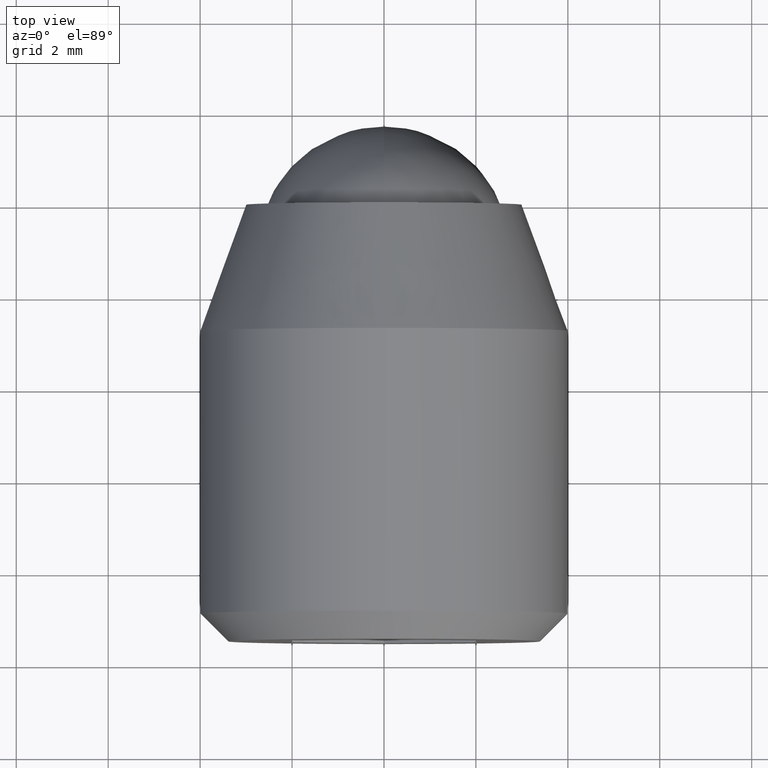
[diagram: clean part render]
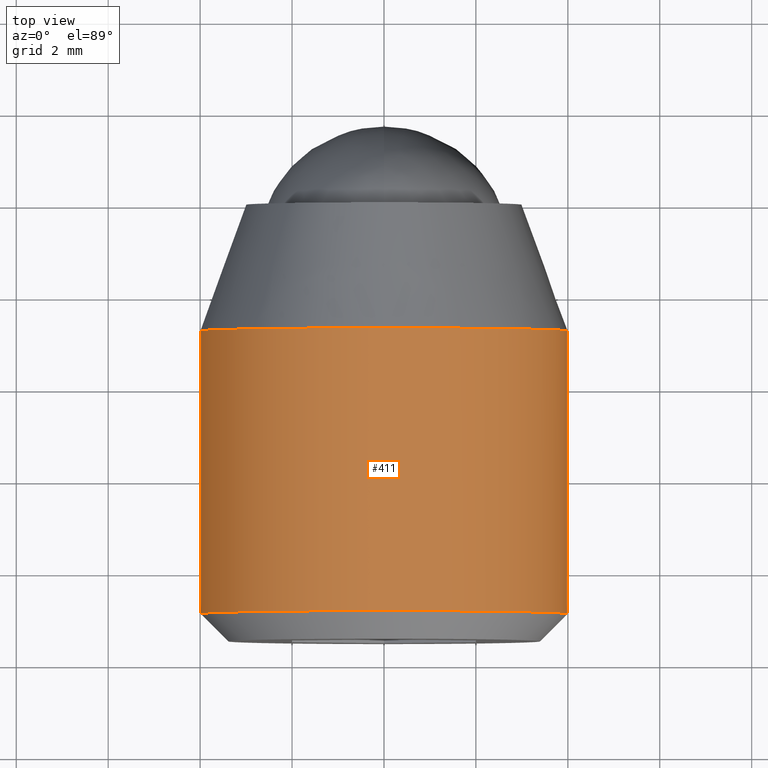
[diagram: same view with one face highlighted and labeled with its STEP entity id]
A machine part, top view. The second image highlights one B-rep face of the part: STEP entity #411.
In plain terms, the highlighted face is a freeform B-spline surface patch.
Its self-contained STEP definition (entity closure, byte-faithful):
#230=CARTESIAN_POINT('',(-0.937294455940053,-2.593663924999999,-3.888634606499309));
#231=CARTESIAN_POINT('',(-0.595313188665042,-2.593663924999999,-3.971063833795824));
#232=CARTESIAN_POINT('',(-0.244194158139428,-2.593663924999999,-3.992539193687468));
#233=CARTESIAN_POINT('',(3.748345035548039,-2.593663925000000,-4.236733351826896));
#234=CARTESIAN_POINT('',(3.992539193687467,-2.593663924999999,-0.244194158139429));
#235=CARTESIAN_POINT('',(4.236733351826894,-2.593663925000000,3.748345035548039));
#236=CARTESIAN_POINT('',(0.244194158139428,-2.593663924999999,3.992539193687466));
#237=CARTESIAN_POINT('',(-3.748345035548039,-2.593663925000000,4.236733351826894));
#238=CARTESIAN_POINT('',(-3.992539193687467,-2.593663924999999,0.244194158139427));
#239=CARTESIAN_POINT('',(-0.937294455940053,-9.057658401875003,-3.888634606499309));
#240=CARTESIAN_POINT('',(-0.595313188665042,-9.057658401875003,-3.971063833795824));
#241=CARTESIAN_POINT('',(-0.244194158139428,-9.057658401875003,-3.992539193687468));
#242=CARTESIAN_POINT('',(3.748345035548039,-9.057658401875004,-4.236733351826896));
#243=CARTESIAN_POINT('',(3.992539193687467,-9.057658401875003,-0.244194158139429));
#244=CARTESIAN_POINT('',(4.236733351826894,-9.057658401875004,3.748345035548039));
#245=CARTESIAN_POINT('',(0.244194158139428,-9.057658401875003,3.992539193687466));
#246=CARTESIAN_POINT('',(-3.748345035548039,-9.057658401875004,4.236733351826894));
#247=CARTESIAN_POINT('',(-3.992539193687467,-9.057658401875003,0.244194158139427));
#255=(BOUNDED_SURFACE()B_SPLINE_SURFACE(2,1,((#230,#239),(#231,#240),(#232,#241),(#233,#242),(#234,#243),(#235,#244),(#236,#245),(#237,#246),(#238,#247)),.UNSPECIFIED.,.F.,.F.,.U.)B_SPLINE_SURFACE_WITH_KNOTS((3,2,2,2,3),(2,2),(0.0,0.795290039756342,7.422707037725862,14.050124035695379,20.677541033664902),(0.0,6.463994476875004),.UNSPECIFIED.)GEOMETRIC_REPRESENTATION_ITEM()RATIONAL_B_SPLINE_SURFACE(((0.938140952186599,0.938140952186599),(0.964852813742386,0.964852813742386),(1.0,1.0),(0.707106781186548,0.707106781186548),(1.0,1.0),(0.707106781186548,0.707106781186548),(1.0,1.0),(0.707106781186548,0.707106781186548),(1.0,1.0)))REPRESENTATION_ITEM('')SURFACE());
#256=CARTESIAN_POINT('',(-0.937293227097118,-8.899999999999999,-3.888634902692239));
#257=VERTEX_POINT('',#256);
#258=CARTESIAN_POINT('',(0.0,-8.900000000000000,-4.000000000000001));
#259=VERTEX_POINT('',#258);
#260=CARTESIAN_POINT('',(-0.937293227097118,-8.899999999999997,-3.888634902692239));
#261=CARTESIAN_POINT('',(-0.475262571361877,-8.900000000000000,-4.000000000000001));
#262=CARTESIAN_POINT('',(0.0,-8.900000000000000,-4.000000000000001));
#270=(BOUNDED_CURVE()B_SPLINE_CURVE(2,(#260,#261,#262),.UNSPECIFIED.,.F.,.U.)B_SPLINE_CURVE_WITH_KNOTS((3,3),(0.959962761347850,1.0),.UNSPECIFIED.)CURVE()GEOMETRIC_REPRESENTATION_ITEM()RATIONAL_B_SPLINE_CURVE((0.921210981979179,0.953093457195077,1.0))REPRESENTATION_ITEM(''));
#271=EDGE_CURVE('',#257,#259,#270,.T.);
#272=ORIENTED_EDGE('',*,*,#271,.F.);
#273=CARTESIAN_POINT('',(-0.937293242248604,-2.747477000000000,-3.888634899040221));
#274=VERTEX_POINT('',#273);
#275=CARTESIAN_POINT('',(-0.937293242248604,-2.747477000000000,-3.888634899040221));
#276=CARTESIAN_POINT('',(-0.937293227097118,-8.899999999999999,-3.888634902692239));
#277=QUASI_UNIFORM_CURVE('',1,(#275,#276),.UNSPECIFIED.,.F.,.U.);
#278=EDGE_CURVE('',#274,#257,#277,.T.);
#279=ORIENTED_EDGE('',*,*,#278,.F.);
#280=CARTESIAN_POINT('',(0.0,-2.747477000000000,-4.000000000000001));
#281=VERTEX_POINT('',#280);
#282=CARTESIAN_POINT('',(-0.937293242248604,-2.747477000000000,-3.888634899040221));
#283=CARTESIAN_POINT('',(-0.475262579264590,-2.747477000000000,-4.000000000000001));
#284=CARTESIAN_POINT('',(0.0,-2.747477000000000,-4.000000000000001));
#292=(BOUNDED_CURVE()B_SPLINE_CURVE(2,(#282,#283,#284),.UNSPECIFIED.,.F.,.U.)B_SPLINE_CURVE_WITH_KNOTS((3,3),(0.959962760713334,1.0),.UNSPECIFIED.)CURVE()GEOMETRIC_REPRESENTATION_ITEM()RATIONAL_B_SPLINE_CURVE((0.921210980968623,0.953093456451696,1.0))REPRESENTATION_ITEM(''));
#293=EDGE_CURVE('',#274,#281,#292,.T.);
#294=ORIENTED_EDGE('',*,*,#293,.T.);
#295=CARTESIAN_POINT('',(3.972037385521139,-2.747473917103442,-0.472133488910133));
#296=VERTEX_POINT('',#295);
#297=CARTESIAN_POINT('',(0.0,-2.747477000000000,-4.000000000000001));
#298=CARTESIAN_POINT('',(3.552700534632364,-2.747475458551722,-3.999999933778294));
#299=CARTESIAN_POINT('',(3.972037385521139,-2.747473917103442,-0.472133488910133));
#307=(BOUNDED_CURVE()B_SPLINE_CURVE(2,(#297,#298,#299),.UNSPECIFIED.,.F.,.U.)B_SPLINE_CURVE_WITH_KNOTS((3,3),(0.0,0.229562614659823),.UNSPECIFIED.)CURVE()GEOMETRIC_REPRESENTATION_ITEM()RATIONAL_B_SPLINE_CURVE((1.0,0.731050667492209,0.956027030836438))REPRESENTATION_ITEM(''));
#308=EDGE_CURVE('',#281,#296,#307,.T.);
#309=ORIENTED_EDGE('',*,*,#308,.T.);
#310=CARTESIAN_POINT('',(0.0,-2.747477000000000,3.999999999999999));
#311=VERTEX_POINT('',#310);
#312=CARTESIAN_POINT('',(3.972037385521139,-2.747473917103442,-0.472133488910133));
#313=CARTESIAN_POINT('',(3.999998915064733,-2.747473998185204,-0.236894673476042));
#314=CARTESIAN_POINT('',(3.999998948059451,-2.747474089475475,0.000000125038188));
#315=CARTESIAN_POINT('',(3.999999505179631,-2.747475630923755,4.000000058816482));
#316=CARTESIAN_POINT('',(0.0,-2.747477000000000,3.999999999999999));
#324=(BOUNDED_CURVE()B_SPLINE_CURVE(2,(#312,#313,#314,#315,#316),.UNSPECIFIED.,.F.,.U.)B_SPLINE_CURVE_WITH_KNOTS((3,2,3),(0.229562614659823,0.250000000000000,0.500000000000000),.UNSPECIFIED.)CURVE()GEOMETRIC_REPRESENTATION_ITEM()RATIONAL_B_SPLINE_CURVE((0.956027030836438,0.976056113694338,1.0,0.707106781186548,1.0))REPRESENTATION_ITEM(''));
#325=EDGE_CURVE('',#296,#311,#324,.T.);
#326=ORIENTED_EDGE('',*,*,#325,.T.);
#327=CARTESIAN_POINT('',(-3.992538964374100,-2.747475426346606,0.244193216148658));
#328=VERTEX_POINT('',#327);
#329=CARTESIAN_POINT('',(0.0,-2.747477000000000,3.999999999999999));
#330=CARTESIAN_POINT('',(-3.762824997636320,-2.747476213173302,3.999999991258105));
#331=CARTESIAN_POINT('',(-3.992538964374101,-2.747475426346606,0.244193216148658));
#339=(BOUNDED_CURVE()B_SPLINE_CURVE(2,(#329,#330,#331),.UNSPECIFIED.,.F.,.U.)B_SPLINE_CURVE_WITH_KNOTS((3,3),(0.500000000000000,0.739333002196671),.UNSPECIFIED.)CURVE()GEOMETRIC_REPRESENTATION_ITEM()RATIONAL_B_SPLINE_CURVE((1.0,0.719603946473320,0.976072127303751))REPRESENTATION_ITEM(''));
#340=EDGE_CURVE('',#311,#328,#339,.T.);
#341=ORIENTED_EDGE('',*,*,#340,.T.);
#342=CARTESIAN_POINT('',(-3.992539213832878,-8.899999999999999,0.244193828764437));
#343=VERTEX_POINT('',#342);
#344=CARTESIAN_POINT('',(-3.992538964374100,-2.747475426346606,0.244193216148658));
#345=CARTESIAN_POINT('',(-3.992539213832878,-8.899999999999999,0.244193828764437));
#346=QUASI_UNIFORM_CURVE('',1,(#344,#345),.UNSPECIFIED.,.F.,.U.);
#347=EDGE_CURVE('',#328,#343,#346,.T.);
#348=ORIENTED_EDGE('',*,*,#347,.T.);
#349=CARTESIAN_POINT('',(-3.987669081144080,-8.900000270182057,0.313836163995019));
#350=VERTEX_POINT('',#349);
#351=CARTESIAN_POINT('',(-3.987669081144081,-8.900000270182057,0.313836163995019));
#352=CARTESIAN_POINT('',(-3.990408181555453,-8.900000000000004,0.279035992859209));
#353=CARTESIAN_POINT('',(-3.992539213832878,-8.899999999999999,0.244193828764437));
#361=(BOUNDED_CURVE()B_SPLINE_CURVE(2,(#351,#352,#353),.UNSPECIFIED.,.F.,.U.)B_SPLINE_CURVE_WITH_KNOTS((3,3),(0.736331317632034,0.739332990711369),.UNSPECIFIED.)CURVE()GEOMETRIC_REPRESENTATION_ITEM()RATIONAL_B_SPLINE_CURVE((0.969723391647992,0.972855523488422,0.976072102688554))REPRESENTATION_ITEM(''));
#362=EDGE_CURVE('',#350,#343,#361,.T.);
#363=ORIENTED_EDGE('',*,*,#362,.F.);
#364=CARTESIAN_POINT('',(0.0,-8.900000000000000,3.999999999999999));
#365=VERTEX_POINT('',#364);
#366=CARTESIAN_POINT('',(0.0,-8.900000000000000,3.999999999999999));
#367=CARTESIAN_POINT('',(-3.697562334434481,-8.900000000000002,4.000000000000000));
#368=CARTESIAN_POINT('',(-3.987669081144081,-8.900000270182057,0.313836163995019));
#376=(BOUNDED_CURVE()B_SPLINE_CURVE(2,(#366,#367,#368),.UNSPECIFIED.,.F.,.U.)B_SPLINE_CURVE_WITH_KNOTS((3,3),(0.500000000000000,0.736331317632035),.UNSPECIFIED.)CURVE()GEOMETRIC_REPRESENTATION_ITEM()RATIONAL_B_SPLINE_CURVE((1.0,0.723120638689316,0.969723391647993))REPRESENTATION_ITEM(''));
#377=EDGE_CURVE('',#365,#350,#376,.T.);
#378=ORIENTED_EDGE('',*,*,#377,.F.);
#379=CARTESIAN_POINT('',(3.987669081144081,-8.900000270182055,-0.313836163995021));
#380=VERTEX_POINT('',#379);
#381=CARTESIAN_POINT('',(3.987669081144081,-8.900000270182055,-0.313836163995021));
#382=CARTESIAN_POINT('',(4.000000000000001,-8.899999999999999,-0.157160229395012));
#383=CARTESIAN_POINT('',(4.0,-8.900000000000000,-6.735335E-016));
#384=CARTESIAN_POINT('',(4.000000000000000,-8.900000000000000,4.000000000000000));
#385=CARTESIAN_POINT('',(0.0,-8.900000000000000,3.999999999999999));
#393=(BOUNDED_CURVE()B_SPLINE_CURVE(2,(#381,#382,#383,#384,#385),.UNSPECIFIED.,.F.,.U.)B_SPLINE_CURVE_WITH_KNOTS((3,2,3),(0.236331317632034,0.250000000000000,0.500000000000000),.UNSPECIFIED.)CURVE()GEOMETRIC_REPRESENTATION_ITEM()RATIONAL_B_SPLINE_CURVE((0.969723391647992,0.983986142497231,1.0,0.707106781186548,1.0))REPRESENTATION_ITEM(''));
#394=EDGE_CURVE('',#380,#365,#393,.T.);
#395=ORIENTED_EDGE('',*,*,#394,.F.);
#396=CARTESIAN_POINT('',(0.0,-8.900000000000000,-4.000000000000001));
#397=CARTESIAN_POINT('',(3.697562334434470,-8.900000000000000,-4.000000000000001));
#398=CARTESIAN_POINT('',(3.987669081144081,-8.900000270182055,-0.313836163995021));
#406=(BOUNDED_CURVE()B_SPLINE_CURVE(2,(#396,#397,#398),.UNSPECIFIED.,.F.,.U.)B_SPLINE_CURVE_WITH_KNOTS((3,3),(0.0,0.236331317632034),.UNSPECIFIED.)CURVE()GEOMETRIC_REPRESENTATION_ITEM()RATIONAL_B_SPLINE_CURVE((1.0,0.723120638689316,0.969723391647992))REPRESENTATION_ITEM(''));
#407=EDGE_CURVE('',#259,#380,#406,.T.);
#408=ORIENTED_EDGE('',*,*,#407,.F.);
#409=EDGE_LOOP('',(#272,#279,#294,#309,#326,#341,#348,#363,#378,#395,#408));
#410=FACE_OUTER_BOUND('',#409,.T.);
#411=ADVANCED_FACE('',(#410),#255,.T.);